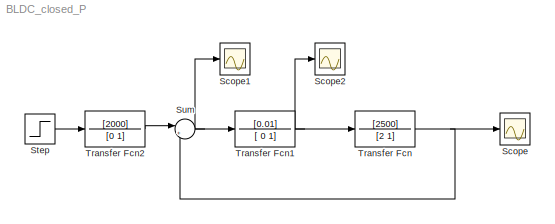
MODEL BLDC_closed_P
KIND model
BLOCK [Scope] Scope
  DataFormat = StructureWithTime
  Floating = off
  NumInputPorts = 1
  Ports = [1]
  SampleTime = 0
BLOCK [Scope] Scope1
  DataFormat = StructureWithTime
  Floating = off
  NumInputPorts = 1
  Ports = [1]
  SampleTime = 0
  SaveName = ScopeData1
BLOCK [Scope] Scope2
  DataFormat = StructureWithTime
  Floating = off
  NumInputPorts = 1
  Ports = [1]
  SampleTime = 0
  SaveName = ScopeData2
BLOCK [Step] Step
  SampleTime = 0
  Time = 0
BLOCK [Sum] Sum
  IconShape = round
  InputSameDT = off
  Inputs = |+-
  OutDataType = sfix(16)
  OutDataTypeMode = Inherit via internal rule
  OutDataTypeStr = Inherit: Inherit via internal rule
  OutScaling = 2^0
  Ports = [2, 1]
  SaturateOnIntegerOverflow = off
BLOCK [TransferFcn] Transfer Fcn
  Denominator = [2 1]
  Numerator = [2500]
BLOCK [TransferFcn] Transfer Fcn1
  Denominator = [ 0 1]
  Numerator = [0.01]
BLOCK [TransferFcn] Transfer Fcn2
  Denominator = [0 1]
  Numerator = [2000]
LINE Step:1 -> Transfer Fcn2:1
NET Sum:1 -> Scope1:1, Transfer Fcn1:1
NET Transfer Fcn1:1 -> Scope2:1, Transfer Fcn:1
LINE Transfer Fcn2:1 -> Sum:1
NET Transfer Fcn:1 -> Scope:1, Sum:2
note: NET lines group one-source signal fan-out (src -> all destinations, sorted); 1:1 wires keep LINE
